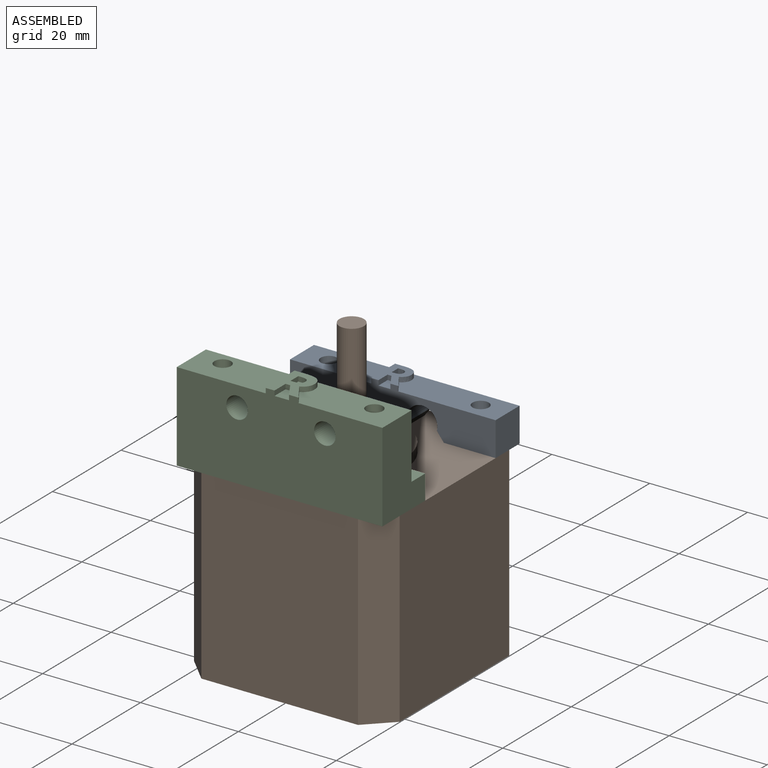
[diagram: assembled view]
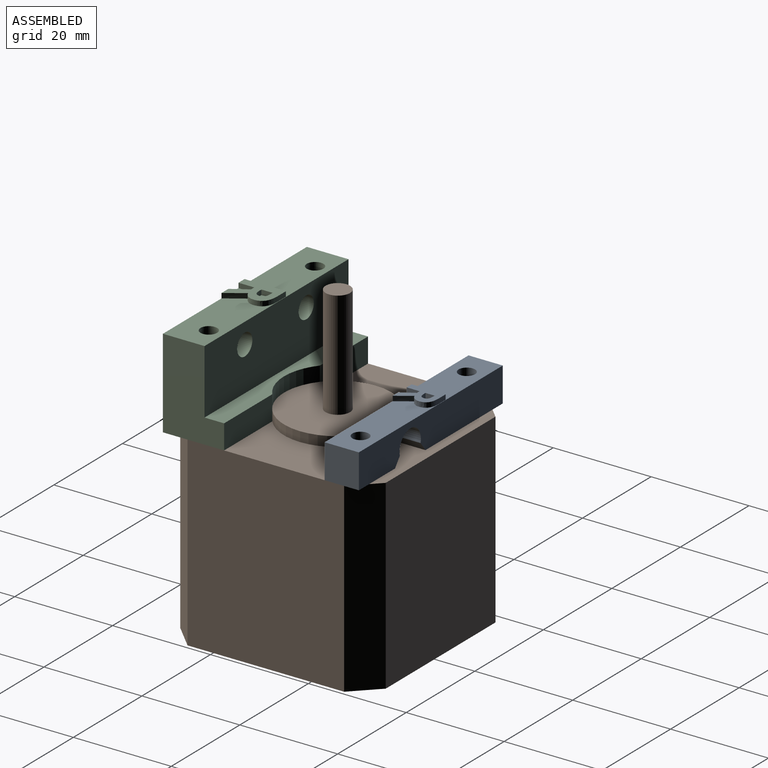
[diagram: assembled view, second angle]
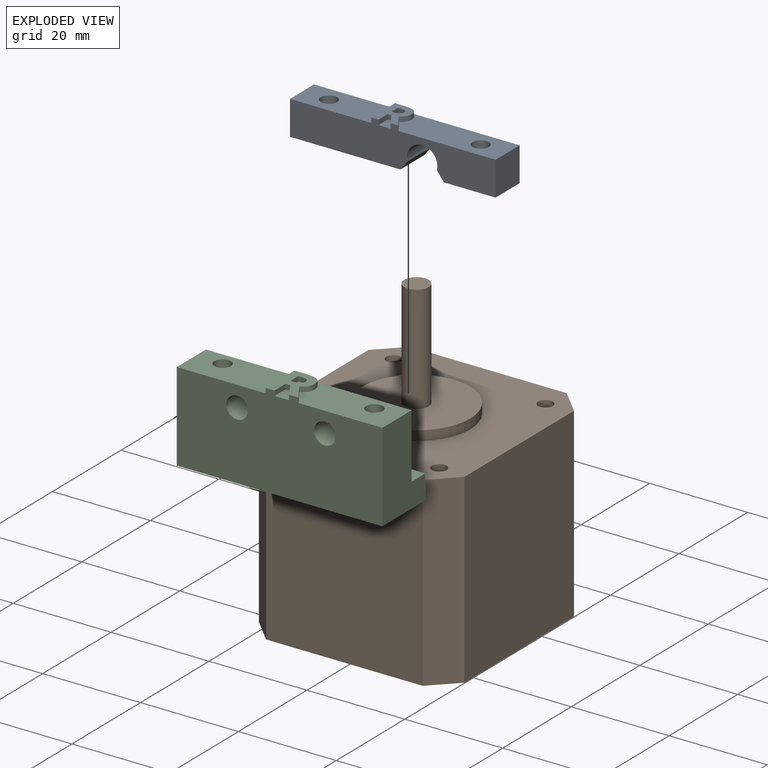
[diagram: exploded view]
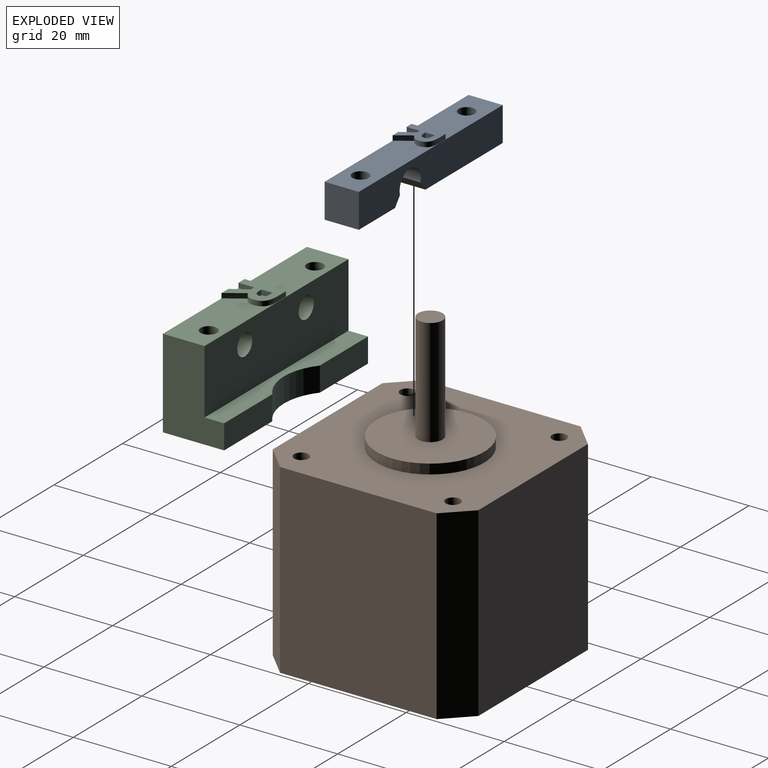
[diagram: exploded view, second angle]
ASSEMBLY  parts=3 mates=2
PART A: 32 faces, bbox 42x8x7 mm
  f0: plane 42x7mm, normal (0,1,0), area 245.5mm2, adj f3,f5,f6,f7,f11,f12,f16,f17
  f1: plane 2.66x2.44mm, normal (0,1,0), area 4.3mm2, adj f7,f13,f14,f15
  f2: plane 10.56x7mm, normal (0,-1,0), area 65.1mm2, adj f3,f6,f7,f10,f11
  f3: plane 7x7mm, normal (-1,0,0), area 49mm2, adj f0,f2,f6,f7
  f4: plane 22.56x7mm, normal (0,-1,0), area 149.1mm2, adj f5,f6,f7,f9,f12
  f5: plane 7x7mm, normal (1,0,0), area 49mm2, adj f0,f4,f6,f7
  f6: plane 42x7mm, normal (0,0,1), area 260.5mm2, adj f0,f2,f3,f4,f5,f8,f9,f10
  f7: plane 42x8mm, normal (0,0,-1), area 263.6mm2, adj f0,f1,f2,f3,f4,f5,f8,f9
  f8: cylinder r=3.1mm len=7mm, axis (0,0,1), area 78.9mm2, adj f6,f7,f9,f10
  f9: plane 7x1.84mm, normal (-0.79,-0.61,0), area 16.4mm2, adj f4,f6,f7,f8
  f10: plane 7x1.84mm, normal (0.79,-0.61,0), area 16.4mm2, adj f2,f6,f7,f8
  f11: cylinder r=1.68mm len=7mm, axis (0,1,0), area 73.7mm2, adj f0,f2
  f12: cylinder r=1.68mm len=7mm, axis (0,1,0), area 73.7mm2, adj f0,f4
  f13: plane 2.66x1mm, normal (-1,0,0), area 2.7mm2, adj f1,f7,f14,f30
  f14: plane 1x0.78mm, normal (0,0,-1), area 0.8mm2, adj f1,f13,f15,f30
  f15: plane 2.66x1.66mm, normal (0.85,0,-0.53), area 3.1mm2, adj f1,f7,f14,f30
  f16: extruded ~3.02x2.04mm, area 3.6mm2, adj f0,f7,f17,f30
  f17: extruded ~1x0.95mm, area 1.2mm2, adj f0,f16,f18,f30
  f18: extruded ~1.09x1mm, area 1.2mm2, adj f0,f17,f19,f30
  f19: extruded ~1.56x1mm, area 1.8mm2, adj f0,f18,f20,f30
  f20: extruded ~2.09x1mm, area 2.2mm2, adj f0,f19,f21,f30
  f21: plane 2.02x1mm, normal (0,0,1), area 2mm2, adj f0,f20,f22,f30
  f22: plane 6.94x1mm, normal (1,0,0), area 6.9mm2, adj f0,f7,f21,f30
  f23: plane 1x0.47mm, normal (0,0,1), area 0.5mm2, adj f24,f29,f30,f31
  f24: plane 1.87x1mm, normal (-1,0,0), area 1.9mm2, adj f23,f25,f30,f31
  f25: plane 1x0.45mm, normal (0,0,-1), area 0.4mm2, adj f24,f26,f30,f31
  f26: extruded ~1.05x1mm, area 1.1mm2, adj f25,f27,f30,f31
  f27: extruded ~1x0.7mm, area 0.8mm2, adj f26,f28,f30,f31
  f28: extruded ~1x0.73mm, area 0.8mm2, adj f27,f29,f30,f31
  f29: extruded ~1.03x1mm, area 1.1mm2, adj f23,f28,f30,f31
  f30: plane 6.94x5.54mm, normal (0,1,0), area 23.5mm2, adj f7,f13,f14,f15,f16,f17,f18,f19
  f31: plane 1.87x1.84mm, normal (0,1,0), area 3mm2, adj f23,f24,f25,f26,f27,f28,f29
PART B: 22 faces, bbox 42x42x62 mm
  f0: plane 38x32mm, normal (-1,0,0), area 1216mm2, adj f4,f5,f8,f9
  f1: plane 38x32mm, normal (0,-1,0), area 1216mm2, adj f4,f5,f7,f9
  f2: plane 38x32mm, normal (1,0,0), area 1216mm2, adj f4,f5,f6,f7
  f3: plane 38x32mm, normal (0,1,0), area 1216mm2, adj f4,f5,f6,f8
  f4: plane 42x42mm, normal (0,0,1), area 1305.6mm2, adj f0,f1,f2,f3,f6,f7,f8,f9
  f5: plane 42x42mm, normal (0,0,-1), area 1714mm2, adj f0,f1,f2,f3,f6,f7,f8,f9
  f6: plane 38x5mm, normal (0.71,0.71,0), area 268.7mm2, adj f2,f3,f4,f5
  f7: plane 38x5mm, normal (0.71,-0.71,0), area 268.7mm2, adj f1,f2,f4,f5
  f8: plane 38x5mm, normal (-0.71,0.71,0), area 268.7mm2, adj f0,f3,f4,f5
  f9: plane 38x5mm, normal (-0.71,-0.71,0), area 268.7mm2, adj f0,f1,f4,f5
  f10: cylinder r=11mm len=22mm, axis (0,0,-1), area 138.2mm2, adj f4,f11
  f11: plane 22x22mm, normal (0,0,1), area 360.5mm2, adj f10,f12
  f12: cylinder r=2.5mm len=22mm, axis (0,0,-1), area 345.6mm2, adj f11,f13
  f13: plane 5x5mm, normal (0,0,1), area 19.6mm2, adj f12
  f14: cylinder r=1.5mm len=25mm, axis (0,0,1), area 235.6mm2, adj f4,f15
  f15: plane 3x3mm, normal (0,0,1), area 7.1mm2, adj f14
  f16: cylinder r=1.5mm len=25mm, axis (0,0,1), area 235.6mm2, adj f4,f17
  f17: plane 3x3mm, normal (0,0,1), area 7.1mm2, adj f16
  f18: cylinder r=1.5mm len=25mm, axis (0,0,1), area 235.6mm2, adj f4,f19
  f19: plane 3x3mm, normal (0,0,1), area 7.1mm2, adj f18
  f20: cylinder r=1.5mm len=25mm, axis (0,0,1), area 235.6mm2, adj f4,f21
  f21: plane 3x3mm, normal (0,0,1), area 7.1mm2, adj f20
PART C: 34 faces, bbox 12.5x42x19.2 mm
  f0: plane 42x8.5mm, normal (0,0,1), area 293.4mm2, adj f2,f4,f8,f9,f10,f12,f18,f19
  f1: plane 14.05x5mm, normal (1,0,0), area 70.3mm2, adj f5,f7,f8,f11
  f2: plane 42x13.2mm, normal (1,0,0), area 524mm2, adj f0,f7,f8,f9,f13,f14
  f3: plane 3.23x2.96mm, normal (0,0,1), area 6.3mm2, adj f4,f15,f16,f17
  f4: plane 42x19.2mm, normal (-1,0,0), area 737.8mm2, adj f0,f3,f5,f8,f9,f13,f14,f15
  f5: plane 42x12.5mm, normal (0,0,-1), area 483.4mm2, adj f1,f4,f6,f8,f9,f10,f11,f12
  f6: plane 14.05x5mm, normal (1,0,0), area 70.3mm2, adj f5,f7,f9,f11
  f7: plane 42x4mm, normal (0,0,1), area 144.6mm2, adj f1,f2,f6,f8,f9,f11
  f8: plane 18.2x12.5mm, normal (0,1,0), area 174.7mm2, adj f0,f1,f2,f4,f5,f7
  f9: plane 18.2x12.5mm, normal (0,-1,0), area 174.7mm2, adj f0,f2,f4,f5,f6,f7
  f10: cylinder r=1.7mm len=18.2mm, axis (0,0,-1), area 194.4mm2, adj f0,f5
  f11: cylinder r=11mm len=13.89mm, axis (0,0,-1), area 75.2mm2, adj f1,f5,f6,f7
  f12: cylinder r=1.7mm len=18.2mm, axis (0,0,-1), area 194.4mm2, adj f0,f5
  f13: cylinder r=2.2mm len=8.5mm, axis (1,0,0), area 117.5mm2, adj f2,f4
  f14: cylinder r=2.2mm len=8.5mm, axis (1,0,0), area 117.5mm2, adj f2,f4
  f15: plane 3.23x1mm, normal (0,-1,0), area 3.2mm2, adj f3,f4,f16,f32
  f16: plane 1x0.95mm, normal (-1,0,0), area 0.9mm2, adj f3,f15,f17,f32
  f17: plane 3.23x2.01mm, normal (-0.53,0.85,0), area 3.8mm2, adj f3,f4,f16,f32
  f18: extruded ~3.67x2.48mm, area 4.4mm2, adj f0,f4,f19,f32
  f19: extruded ~1.16x1mm, area 1.5mm2, adj f0,f18,f20,f32
  f20: extruded ~1.32x1mm, area 1.4mm2, adj f0,f19,f21,f32
  f21: extruded ~1.9x1mm, area 2.2mm2, adj f0,f20,f22,f32
  f22: extruded ~2.54x1mm, area 2.7mm2, adj f0,f21,f23,f32
  f23: plane 2.46x1mm, normal (1,0,0), area 2.5mm2, adj f0,f22,f24,f32
  f24: plane 8.43x1mm, normal (0,1,0), area 8.4mm2, adj f0,f4,f23,f32
  f25: plane 1x0.58mm, normal (1,0,0), area 0.6mm2, adj f26,f31,f32,f33
  f26: plane 2.28x1mm, normal (0,-1,0), area 2.3mm2, adj f25,f27,f32,f33
  f27: plane 1x0.54mm, normal (-1,0,0), area 0.5mm2, adj f26,f28,f32,f33
  f28: extruded ~1.28x1mm, area 1.3mm2, adj f27,f29,f32,f33
  f29: extruded ~1x0.85mm, area 1mm2, adj f28,f30,f32,f33
  f30: extruded ~1x0.89mm, area 1mm2, adj f29,f31,f32,f33
  f31: extruded ~1.25x1mm, area 1.3mm2, adj f25,f30,f32,f33
  f32: plane 8.43x6.73mm, normal (0,0,1), area 34.7mm2, adj f4,f15,f16,f17,f18,f19,f20,f21
  f33: plane 2.28x2.23mm, normal (0,0,1), area 4.5mm2, adj f25,f26,f27,f28,f29,f30,f31
PLACE A rot(axis=(0,0.71,0.71),180deg) t=(41.48,44.37,42.14)mm
PLACE B t=(-0.52,11.37,4.14)mm
PLACE C rot(axis=(0,0,1),90deg) t=(41.48,11.34,42.14)mm
MATE fastened A.f11 <-> B.f16  axis (0,0,1) through (35.98,47.87,42.14)mm
MATE fastened C.f10 <-> B.f14  axis (0,0,-1) through (4.98,16.87,42.14)mm
